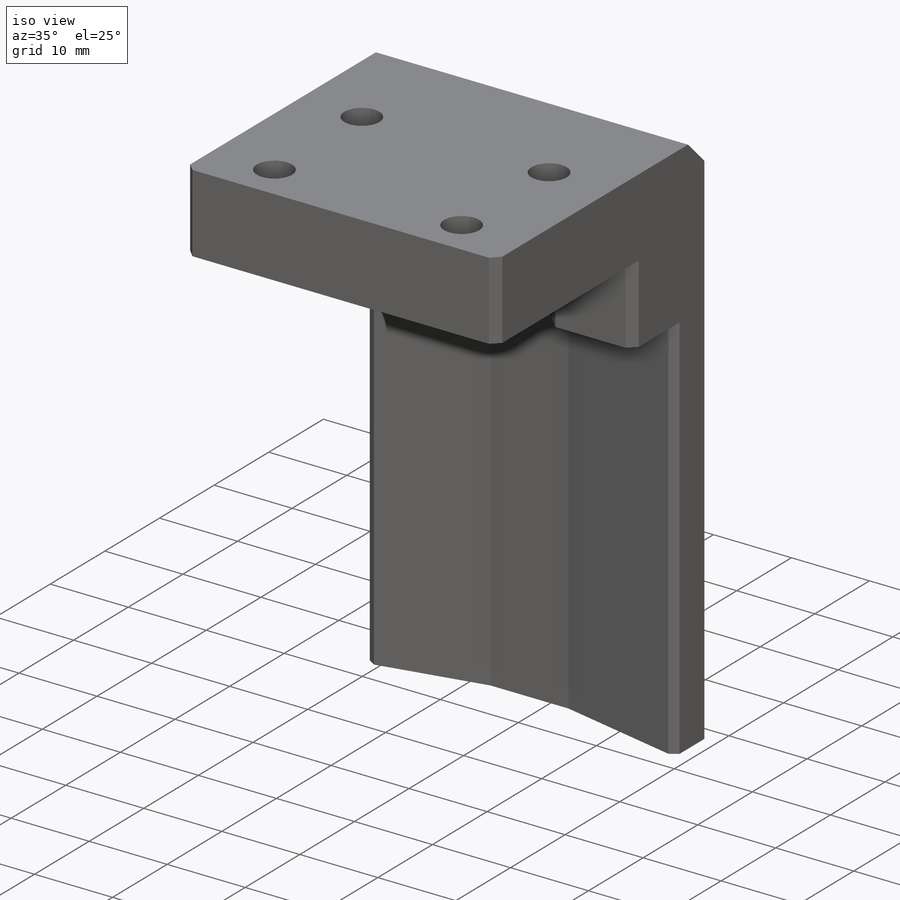
[diagram: iso view]
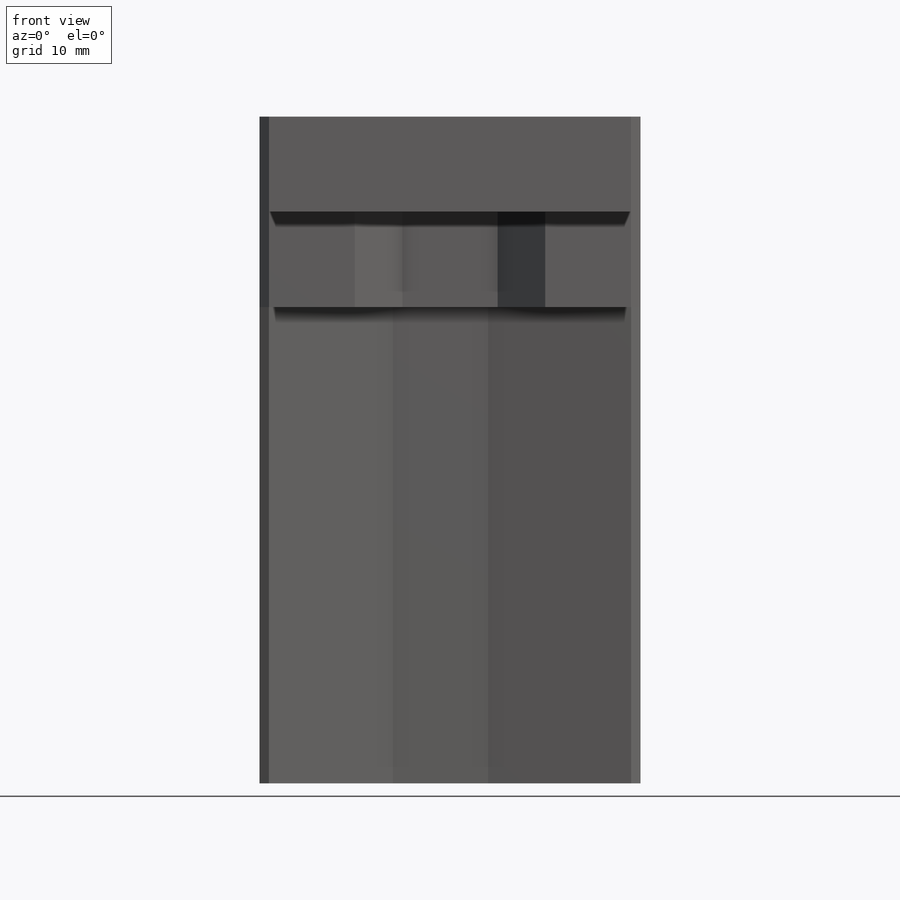
[diagram: front view]
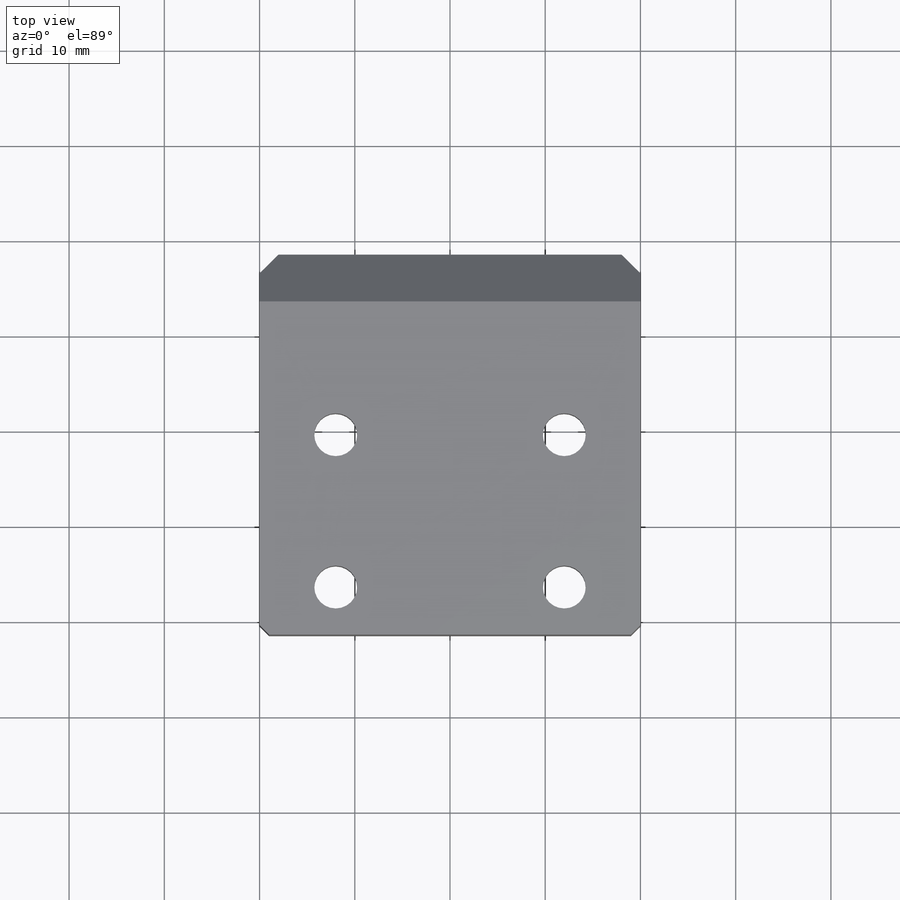
[diagram: top view]
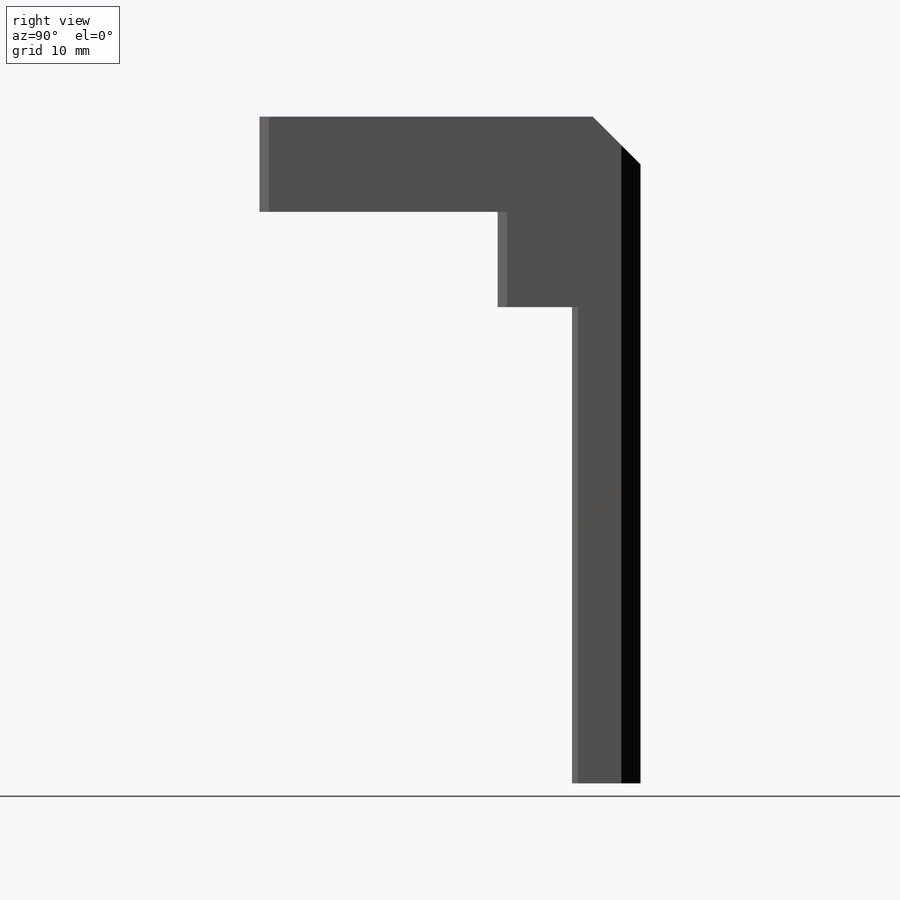
[diagram: right view]
SOLIDWORKS PART (.sldprt)
format: sldprt  version: not decoded by parser v0  size: 276,992 bytes
history: native  units: mm
features: sketch x6, chamfer x4, plane x3, extrude x2, cut_extrude x2, material x1, hole x1 (+10 scaffold rows collapsed)
feature tree (29):
  scaffold x10  (default folders/planes/origin — collapsed)
  material  "材质 <未指定>"
  plane  "前视基准面"
  plane  "上视基准面"
  plane  "右视基准面"
  sketch  "草图1"  dims[D1=15.0mm D2=40.0mm]
  extrude  "凸台-拉伸1"  Depth=60mm
  sketch  "草图3"  dims[D1=25.0mm]
  extrude  "凸台-拉伸2"  Depth=10mm
  hole  "M4 六角凹头螺钉的柱形沉头孔1"  [1 undecoded]
  sketch  "草图5"  dims[D1=24.0mm D2=24.0mm D3=16.0mm D4=5.0mm]
  sketch  "草图4"  dims[hole-wizard template sketch: 41 standard entries collapsed; hole parameters kept: c12.通孔孔直径=4.5mm c12.通孔孔深度=10.0mm c12.柱形沉头孔直径=8.0mm c12.柱形沉头孔深度=4.4mm]
  chamfer  "倒角1"  Distance=5mm Angle=45deg
  chamfer  "倒角2"  Distance=2mm Angle=45deg
  sketch  "草图7"  dims[c1.D2=80.0mm c1.D1=44.0mm c1.D3=4.0mm c1.D4=10.0mm c1.D5=6.0mm c2.D2=~25.343414mm c3.D2=12.0deg c3.D6=10.0mm c4.D6=12.0deg]
  cut_extrude  "切除-拉伸2"  Depth=50mm
  chamfer  "倒角3"  Distance=1mm Angle=45deg
  sketch  "草图8"  dims[c1.D1=5.0mm c1.D2=10.0mm c1.D3=5.0mm c1.D4=~4.503129mm c2.D4=45.0deg]
  cut_extrude  "切除-拉伸3"  [1 undecoded]
  chamfer  "倒角4"  Distance=1mm Angle=45deg
decode coverage: 13 of 15 modeling features carry decoded parameters
note: ~ marks probable driven/reference dimensions
note: 2 parameter values undecoded
note: suppression state not decoded; provenance and decode notes live in map.json
